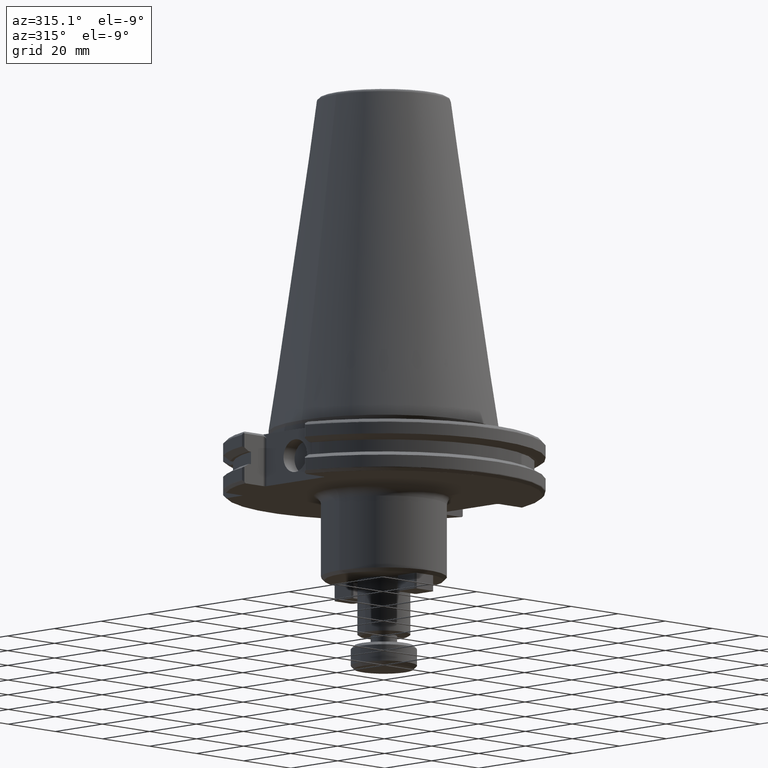
[diagram: clean part render]
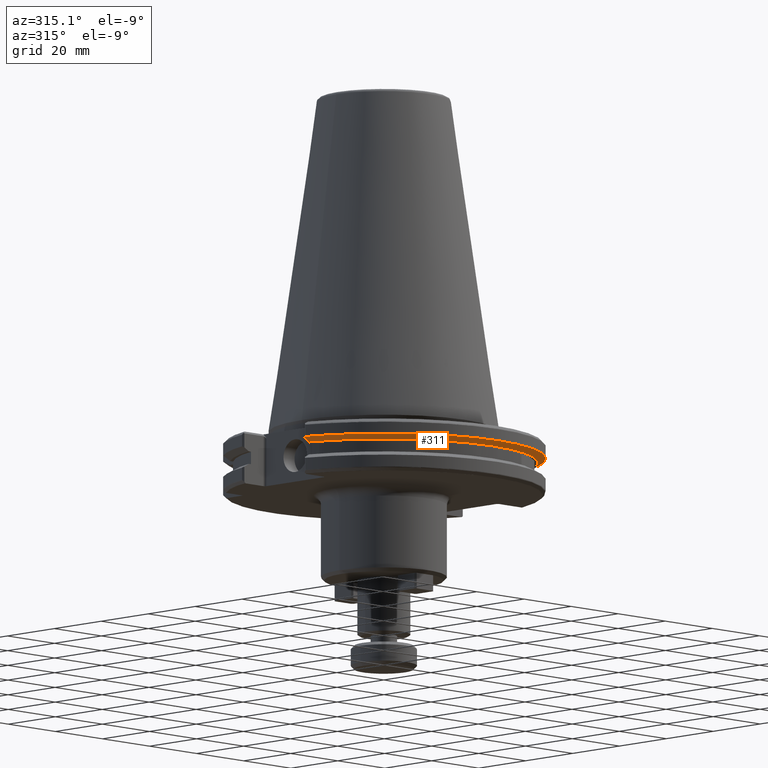
[diagram: same view with one face highlighted and labeled with its STEP entity id]
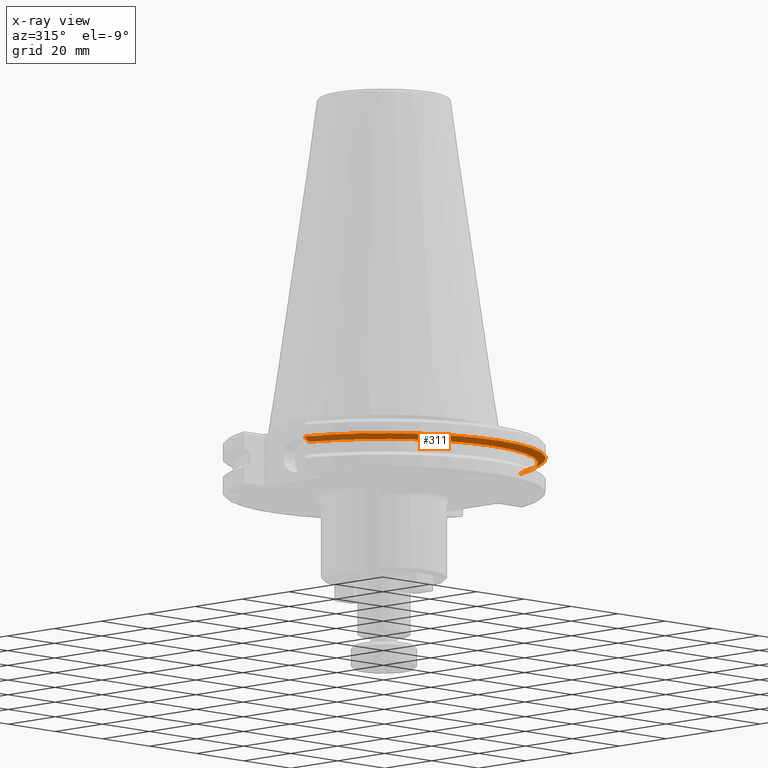
[diagram: x-ray of the same camera — body ghosted, the highlighted face saturated]
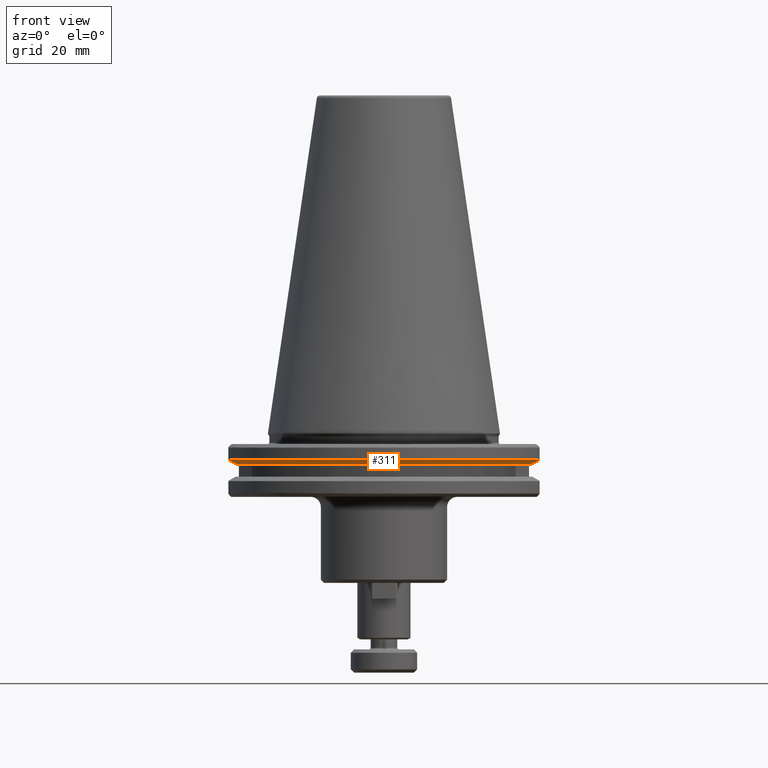
[diagram: same view with one face highlighted and labeled with its STEP entity id]
A machine part, auxiliary view. The second image highlights one B-rep face of the part: STEP entity #311.
The next image is the same camera in x-ray: the body ghosted, the highlighted face saturated — about 1% of this face is hidden behind the body in this view.
A second angle (front view) of the same face is appended — the face is thin or edge-on in the first view.
In plain terms, the highlighted conical surface has half-angle 60 deg.
Its self-contained STEP definition (entity closure, byte-faithful):
#311 = ADVANCED_FACE ( 'NONE', ( #3061 ), #536, .T. ) ;
#436 = VERTEX_POINT ( 'NONE', #1091 ) ;
#450 = VERTEX_POINT ( 'NONE', #713 ) ;
#468 = CIRCLE ( 'NONE', #1234, 48.75000000000000000 ) ;
#489 = CARTESIAN_POINT ( 'NONE',  ( 45.17665515522025300, -12.85000000000000000, -8.881032026681239700 ) ) ;
#536 = CONICAL_SURFACE ( 'NONE', #2949, 48.75000000000000000, 1.047197551196595900 ) ;
#593 = B_SPLINE_CURVE_WITH_KNOTS ( 'NONE', 3,
 ( #2896, #793, #1397, #3499 ),
 .UNSPECIFIED., .F., .F.,
 ( 4, 4 ),
 ( 0.01755247468417002500, 0.01967373553301542100 ),
 .UNSPECIFIED. ) ;
#610 = EDGE_CURVE ( 'NONE', #1373, #450, #1155, .T. ) ;
#641 = CARTESIAN_POINT ( 'NONE',  ( 46.87302845420868600, -13.39707817141269600, -7.852404735808352000 ) ) ;
#649 = ORIENTED_EDGE ( 'NONE', *, *, #2763, .T. ) ;
#675 = EDGE_LOOP ( 'NONE', ( #3789, #649, #3585, #1703, #3478, #2020 ) ) ;
#713 = CARTESIAN_POINT ( 'NONE',  ( 44.60171466536179000, -12.85000000000000000, -9.200000000000011700 ) ) ;
#793 = CARTESIAN_POINT ( 'NONE',  ( -45.22003745909768200, -12.85000000000000000, -8.856964204376552600 ) ) ;
#831 = CARTESIAN_POINT ( 'NONE',  ( 45.75139349537583700, -12.85000000000000000, -8.561704084504221200 ) ) ;
#975 = AXIS2_PLACEMENT_3D ( 'NONE', #1080, #3767, #2617 ) ;
#1080 = CARTESIAN_POINT ( 'NONE',  ( 0.0000000000000000000, 0.0000000000000000000, -9.200000000000013500 ) ) ;
#1091 = CARTESIAN_POINT ( 'NONE',  ( 46.32595028279600100, -12.85000000000000000, -8.242052850578806700 ) ) ;
#1155 = CIRCLE ( 'NONE', #975, 46.41589653438084900 ) ;
#1234 = AXIS2_PLACEMENT_3D ( 'NONE', #3312, #1495, #3605 ) ;
#1297 = CARTESIAN_POINT ( 'NONE',  ( -46.58343736542643400, -13.07323061968890000, -8.064420687686467900 ) ) ;
#1351 = EDGE_CURVE ( 'NONE', #2798, #2883, #468, .T. ) ;
#1373 = VERTEX_POINT ( 'NONE', #2446 ) ;
#1397 = CARTESIAN_POINT ( 'NONE',  ( -45.83813158313352400, -12.85000000000000000, -8.513509317065294000 ) ) ;
#1495 = DIRECTION ( 'NONE',  ( -0.0000000000000000000, -0.0000000000000000000, 1.000000000000000000 ) ) ;
#1533 = CARTESIAN_POINT ( 'NONE',  ( -46.83796378645140400, -13.51915856623731000, -7.852404735808352000 ) ) ;
#1585 = CARTESIAN_POINT ( 'NONE',  ( -46.71075047507945800, -13.29628201579796700, -7.958655138235696000 ) ) ;
#1703 = ORIENTED_EDGE ( 'NONE', *, *, #3455, .T. ) ;
#1843 = CARTESIAN_POINT ( 'NONE',  ( 46.50839100801133000, -13.03244072521532900, -8.112398790905052300 ) ) ;
#1855 = B_SPLINE_CURVE_WITH_KNOTS ( 'NONE', 3,
 ( #3353, #1843, #2492, #641 ),
 .UNSPECIFIED., .F., .F.,
 ( 4, 4 ),
 ( 0.0000000000000000000, 0.0008662648005181087800 ),
 .UNSPECIFIED. ) ;
#2020 = ORIENTED_EDGE ( 'NONE', *, *, #610, .T. ) ;
#2183 = CARTESIAN_POINT ( 'NONE',  ( -46.45602195867208900, -12.85000000000000000, -8.169681012105774800 ) ) ;
#2302 = EDGE_CURVE ( 'NONE', #450, #436, #3410, .T. ) ;
#2359 = CARTESIAN_POINT ( 'NONE',  ( 44.60171466536179000, -12.85000000000000000, -9.200000000000011700 ) ) ;
#2446 = CARTESIAN_POINT ( 'NONE',  ( -44.60171466536179000, -12.85000000000000000, -9.200000000000009900 ) ) ;
#2460 = B_SPLINE_CURVE_WITH_KNOTS ( 'NONE', 3,
 ( #3681, #1585, #1297, #3398 ),
 .UNSPECIFIED., .F., .F.,
 ( 4, 4 ),
 ( 6.254634441385501500E-018, 0.0008332568524034598700 ),
 .UNSPECIFIED. ) ;
#2492 = CARTESIAN_POINT ( 'NONE',  ( 46.69074934156821400, -13.21479905877221800, -7.982512621096202700 ) ) ;
#2617 = DIRECTION ( 'NONE',  ( 1.000000000000000000, 0.0000000000000000000, 0.0000000000000000000 ) ) ;
#2718 = CARTESIAN_POINT ( 'NONE',  ( 46.87302845420868600, -13.39707817141269600, -7.852404735808352000 ) ) ;
#2724 = VERTEX_POINT ( 'NONE', #2183 ) ;
#2763 = EDGE_CURVE ( 'NONE', #436, #2883, #1855, .T. ) ;
#2798 = VERTEX_POINT ( 'NONE', #1533 ) ;
#2883 = VERTEX_POINT ( 'NONE', #2718 ) ;
#2896 = CARTESIAN_POINT ( 'NONE',  ( -44.60171466536179000, -12.85000000000000000, -9.200000000000009900 ) ) ;
#2910 = DIRECTION ( 'NONE',  ( 1.000000000000000000, 0.0000000000000000000, 0.0000000000000000000 ) ) ;
#2933 = CARTESIAN_POINT ( 'NONE',  ( 46.32595028279600100, -12.85000000000000000, -8.242052850578806700 ) ) ;
#2949 = AXIS2_PLACEMENT_3D ( 'NONE', #3512, #3808, #2910 ) ;
#3061 = FACE_OUTER_BOUND ( 'NONE', #675, .T. ) ;
#3312 = CARTESIAN_POINT ( 'NONE',  ( 0.0000000000000000000, 0.0000000000000000000, -7.852404735808352000 ) ) ;
#3353 = CARTESIAN_POINT ( 'NONE',  ( 46.32595028279600100, -12.85000000000000000, -8.242052850578806700 ) ) ;
#3398 = CARTESIAN_POINT ( 'NONE',  ( -46.45602195867208900, -12.85000000000000000, -8.169681012105774800 ) ) ;
#3410 = B_SPLINE_CURVE_WITH_KNOTS ( 'NONE', 3,
 ( #2359, #489, #831, #2933 ),
 .UNSPECIFIED., .F., .F.,
 ( 4, 4 ),
 ( 0.02458381930567173800, 0.02655610189717412200 ),
 .UNSPECIFIED. ) ;
#3455 = EDGE_CURVE ( 'NONE', #2798, #2724, #2460, .T. ) ;
#3478 = ORIENTED_EDGE ( 'NONE', *, *, #3668, .F. ) ;
#3499 = CARTESIAN_POINT ( 'NONE',  ( -46.45602195867208900, -12.85000000000000000, -8.169681012105774800 ) ) ;
#3512 = CARTESIAN_POINT ( 'NONE',  ( 0.0000000000000000000, 0.0000000000000000000, -7.852404735808352000 ) ) ;
#3585 = ORIENTED_EDGE ( 'NONE', *, *, #1351, .F. ) ;
#3605 = DIRECTION ( 'NONE',  ( 1.000000000000000000, 0.0000000000000000000, 0.0000000000000000000 ) ) ;
#3668 = EDGE_CURVE ( 'NONE', #1373, #2724, #593, .T. ) ;
#3681 = CARTESIAN_POINT ( 'NONE',  ( -46.83796378645140400, -13.51915856623731000, -7.852404735808352000 ) ) ;
#3767 = DIRECTION ( 'NONE',  ( -0.0000000000000000000, -0.0000000000000000000, 1.000000000000000000 ) ) ;
#3789 = ORIENTED_EDGE ( 'NONE', *, *, #2302, .T. ) ;
#3808 = DIRECTION ( 'NONE',  ( -0.0000000000000000000, -0.0000000000000000000, 1.000000000000000000 ) ) ;